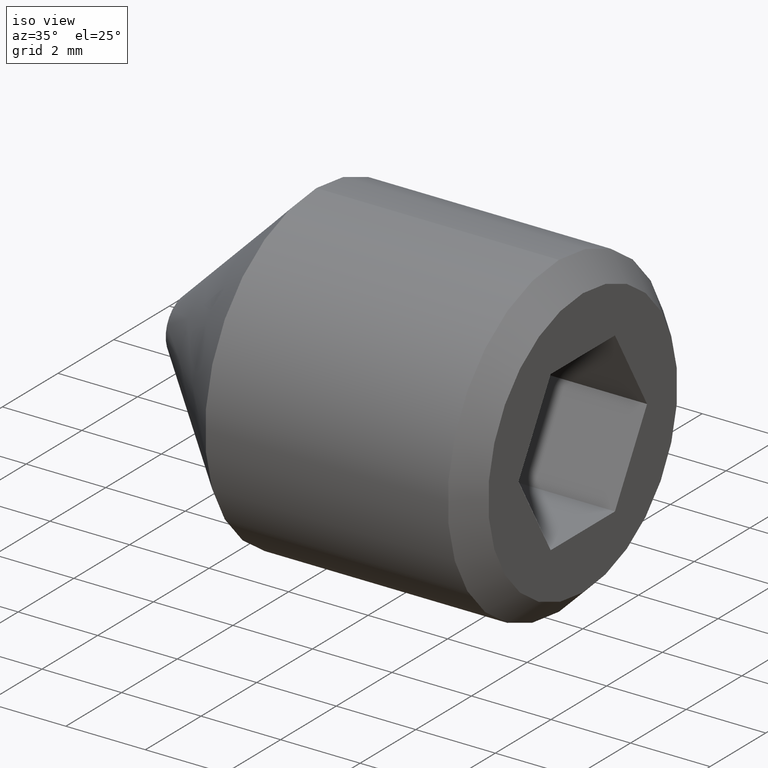
[diagram: clean part render]
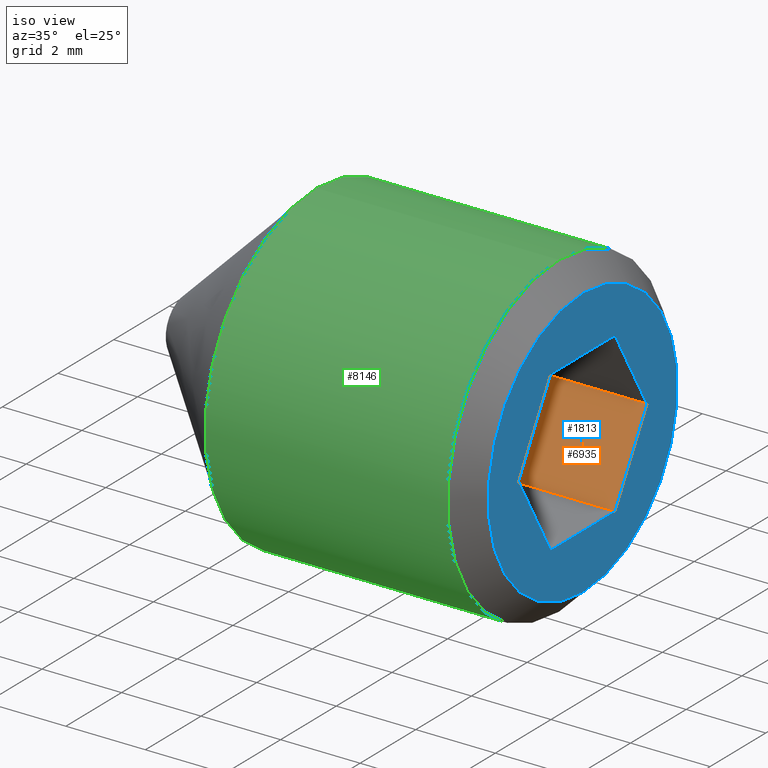
[diagram: same view with three faces highlighted in distinct colors, each labeled with its STEP entity id]
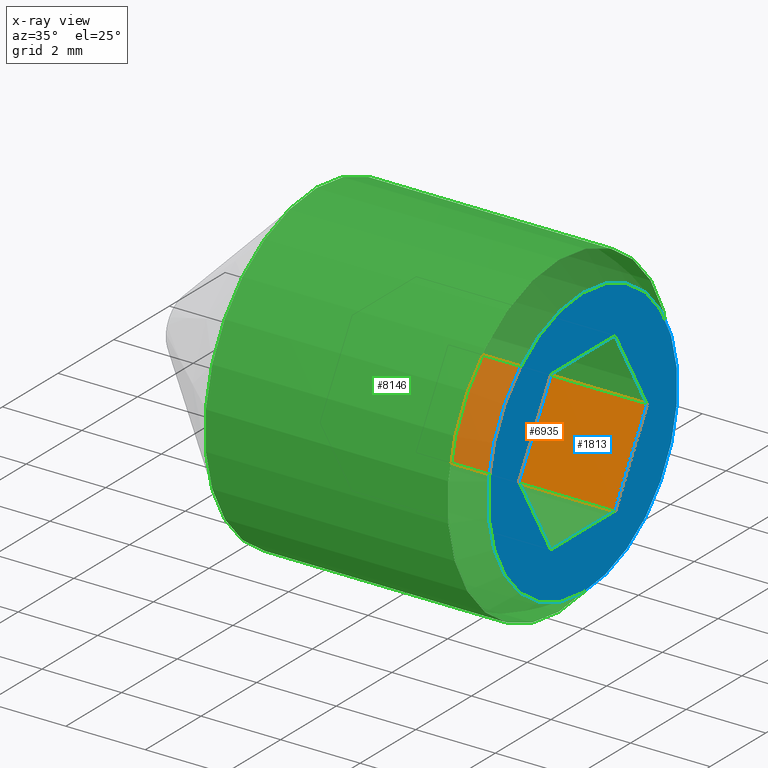
[diagram: x-ray of the same camera — body ghosted, the three highlighted faces saturated]
A machine part, iso view with three faces highlighted in distinct colors.
The next image is the same camera in x-ray (body ghosted, the three faces saturated) — at least one of them is partly hidden behind the body in this view.
Their STEP definitions:

[orange] entity #6935 — the highlighted planar face has unit normal (0, 0.866, -0.5).
#149 = ORIENTED_EDGE ( 'NONE', *, *, #3886, .T. ) ;
#911 = EDGE_CURVE ( 'NONE', #11181, #2549, #7802, .T. ) ;
#932 = DIRECTION ( 'NONE',  ( 3.061515884555943800E-017, 0.8660254037844387100, -0.5000000000000001100 ) ) ;
#982 = CARTESIAN_POINT ( 'NONE',  ( 10.00000000000000000, 1.154700538379252400, -1.999999999999999600 ) ) ;
#1622 = ORIENTED_EDGE ( 'NONE', *, *, #911, .T. ) ;
#1766 = VERTEX_POINT ( 'NONE', #6729 ) ;
#1983 = DIRECTION ( 'NONE',  ( 0.0000000000000000000, 0.4999999999999999400, 0.8660254037844386000 ) ) ;
#2109 = LINE ( 'NONE', #6678, #8781 ) ;
#2466 = DIRECTION ( 'NONE',  ( 1.000000000000000000, -0.0000000000000000000, 6.123031769111886300E-017 ) ) ;
#2549 = VERTEX_POINT ( 'NONE', #7913 ) ;
#2578 = VERTEX_POINT ( 'NONE', #10760 ) ;
#2788 = DIRECTION ( 'NONE',  ( 0.0000000000000000000, 0.4999999999999999400, 0.8660254037844386000 ) ) ;
#2816 = CARTESIAN_POINT ( 'NONE',  ( 5.000000000000000000, 1.154700538379252400, -2.000000000000000000 ) ) ;
#3135 = DIRECTION ( 'NONE',  ( 1.000000000000000000, -0.0000000000000000000, 6.123031769111886300E-017 ) ) ;
#3886 = EDGE_CURVE ( 'NONE', #2578, #11181, #2109, .T. ) ;
#5127 = VECTOR ( 'NONE', #2788, 1000.000000000000100 ) ;
#5704 = CARTESIAN_POINT ( 'NONE',  ( 5.000000000000000000, 1.154700538379252400, -2.000000000000000000 ) ) ;
#6013 = LINE ( 'NONE', #7891, #6563 ) ;
#6187 = AXIS2_PLACEMENT_3D ( 'NONE', #2816, #932, #7243 ) ;
#6563 = VECTOR ( 'NONE', #2466, 1000.000000000000000 ) ;
#6678 = CARTESIAN_POINT ( 'NONE',  ( 5.000000000000000000, 1.154700538379252400, -2.000000000000000000 ) ) ;
#6729 = CARTESIAN_POINT ( 'NONE',  ( 5.000000000000000000, 2.309401076758503400, -1.190619091596349400E-015 ) ) ;
#6741 = FACE_OUTER_BOUND ( 'NONE', #8150, .T. ) ;
#6935 = ADVANCED_FACE ( 'NONE', ( #6741 ), #10819, .F. ) ;
#7243 = DIRECTION ( 'NONE',  ( 0.0000000000000000000, 0.5000000000000000000, 0.8660254037844386000 ) ) ;
#7802 = LINE ( 'NONE', #982, #5127 ) ;
#7891 = CARTESIAN_POINT ( 'NONE',  ( 5.000000000000000000, 2.309401076758503400, -1.190619091596349400E-015 ) ) ;
#7913 = CARTESIAN_POINT ( 'NONE',  ( 10.00000000000000000, 2.309401076758503400, -8.844675031407550400E-016 ) ) ;
#8150 = EDGE_LOOP ( 'NONE', ( #1622, #9732, #9016, #149 ) ) ;
#8284 = VECTOR ( 'NONE', #1983, 1000.000000000000100 ) ;
#8434 = LINE ( 'NONE', #5704, #8284 ) ;
#8781 = VECTOR ( 'NONE', #3135, 1000.000000000000000 ) ;
#9016 = ORIENTED_EDGE ( 'NONE', *, *, #10495, .F. ) ;
#9308 = CARTESIAN_POINT ( 'NONE',  ( 10.00000000000000000, 1.154700538379252400, -1.999999999999999600 ) ) ;
#9732 = ORIENTED_EDGE ( 'NONE', *, *, #10150, .F. ) ;
#10150 = EDGE_CURVE ( 'NONE', #1766, #2549, #6013, .T. ) ;
#10495 = EDGE_CURVE ( 'NONE', #2578, #1766, #8434, .T. ) ;
#10760 = CARTESIAN_POINT ( 'NONE',  ( 5.000000000000000000, 1.154700538379252400, -2.000000000000000000 ) ) ;
#10819 = PLANE ( 'NONE',  #6187 ) ;
#11181 = VERTEX_POINT ( 'NONE', #9308 ) ;

[blue] entity #1813 — the highlighted planar face has unit normal (1, 0, 0).
#281 = FACE_BOUND ( 'NONE', #4044, .T. ) ;
#338 = EDGE_CURVE ( 'NONE', #7567, #4292, #6650, .T. ) ;
#365 = CARTESIAN_POINT ( 'NONE',  ( 10.00000000000000000, 1.154700538379252100, 2.000000000000000000 ) ) ;
#508 = DIRECTION ( 'NONE',  ( 1.000000000000000000, 0.0000000000000000000, 0.0000000000000000000 ) ) ;
#695 = CARTESIAN_POINT ( 'NONE',  ( 10.00000000000000000, 0.0000000000000000000, 0.0000000000000000000 ) ) ;
#911 = EDGE_CURVE ( 'NONE', #11181, #2549, #7802, .T. ) ;
#982 = CARTESIAN_POINT ( 'NONE',  ( 10.00000000000000000, 1.154700538379252400, -1.999999999999999600 ) ) ;
#1341 = DIRECTION ( 'NONE',  ( 0.0000000000000000000, 0.0000000000000000000, -1.000000000000000000 ) ) ;
#1424 = DIRECTION ( 'NONE',  ( 0.0000000000000000000, 1.000000000000000000, 0.0000000000000000000 ) ) ;
#1566 = DIRECTION ( 'NONE',  ( 1.000000000000000000, 0.0000000000000000000, 0.0000000000000000000 ) ) ;
#1813 = ADVANCED_FACE ( 'NONE', ( #281, #1982 ), #8691, .T. ) ;
#1935 = EDGE_CURVE ( 'NONE', #2549, #7567, #4832, .T. ) ;
#1982 = FACE_OUTER_BOUND ( 'NONE', #7431, .T. ) ;
#1998 = AXIS2_PLACEMENT_3D ( 'NONE', #4045, #508, #1341 ) ;
#2509 = LINE ( 'NONE', #3969, #10988 ) ;
#2549 = VERTEX_POINT ( 'NONE', #7913 ) ;
#2666 = LINE ( 'NONE', #10458, #3645 ) ;
#2788 = DIRECTION ( 'NONE',  ( 0.0000000000000000000, 0.4999999999999999400, 0.8660254037844386000 ) ) ;
#2961 = EDGE_CURVE ( 'NONE', #4292, #6827, #6095, .T. ) ;
#3419 = VECTOR ( 'NONE', #7470, 1000.000000000000000 ) ;
#3522 = ORIENTED_EDGE ( 'NONE', *, *, #338, .F. ) ;
#3645 = VECTOR ( 'NONE', #7593, 1000.000000000000000 ) ;
#3690 = CARTESIAN_POINT ( 'NONE',  ( 10.00000000000000000, 2.309401076758503400, -8.844675031407550400E-016 ) ) ;
#3836 = VECTOR ( 'NONE', #4528, 1000.000000000000000 ) ;
#3969 = CARTESIAN_POINT ( 'NONE',  ( 10.00000000000000000, -1.154700538379252400, -1.999999999999999600 ) ) ;
#4036 = ORIENTED_EDGE ( 'NONE', *, *, #4422, .T. ) ;
#4044 = EDGE_LOOP ( 'NONE', ( #8555, #3522, #7119, #6071, #10120, #7260 ) ) ;
#4045 = CARTESIAN_POINT ( 'NONE',  ( 10.00000000000000000, 0.0000000000000000000, 0.0000000000000000000 ) ) ;
#4149 = DIRECTION ( 'NONE',  ( 0.0000000000000000000, 0.0000000000000000000, -1.000000000000000000 ) ) ;
#4292 = VERTEX_POINT ( 'NONE', #9034 ) ;
#4422 = EDGE_CURVE ( 'NONE', #7130, #7130, #9329, .T. ) ;
#4528 = DIRECTION ( 'NONE',  ( 0.0000000000000000000, -0.4999999999999997200, 0.8660254037844388200 ) ) ;
#4832 = LINE ( 'NONE', #3690, #3836 ) ;
#5127 = VECTOR ( 'NONE', #2788, 1000.000000000000100 ) ;
#5233 = EDGE_CURVE ( 'NONE', #6827, #6535, #2666, .T. ) ;
#5352 = CARTESIAN_POINT ( 'NONE',  ( 10.00000000000000000, -1.154700538379252400, -1.999999999999999600 ) ) ;
#6071 = ORIENTED_EDGE ( 'NONE', *, *, #911, .F. ) ;
#6095 = LINE ( 'NONE', #7926, #9775 ) ;
#6352 = CARTESIAN_POINT ( 'NONE',  ( 10.00000000000000000, 0.0000000000000000000, -3.400000000000000800 ) ) ;
#6535 = VERTEX_POINT ( 'NONE', #5352 ) ;
#6650 = LINE ( 'NONE', #365, #3419 ) ;
#6827 = VERTEX_POINT ( 'NONE', #9159 ) ;
#7119 = ORIENTED_EDGE ( 'NONE', *, *, #1935, .F. ) ;
#7130 = VERTEX_POINT ( 'NONE', #6352 ) ;
#7260 = ORIENTED_EDGE ( 'NONE', *, *, #5233, .F. ) ;
#7324 = EDGE_CURVE ( 'NONE', #6535, #11181, #2509, .T. ) ;
#7431 = EDGE_LOOP ( 'NONE', ( #4036 ) ) ;
#7470 = DIRECTION ( 'NONE',  ( 0.0000000000000000000, -1.000000000000000000, 0.0000000000000000000 ) ) ;
#7567 = VERTEX_POINT ( 'NONE', #10940 ) ;
#7593 = DIRECTION ( 'NONE',  ( 0.0000000000000000000, 0.4999999999999995600, -0.8660254037844389300 ) ) ;
#7802 = LINE ( 'NONE', #982, #5127 ) ;
#7913 = CARTESIAN_POINT ( 'NONE',  ( 10.00000000000000000, 2.309401076758503400, -8.844675031407550400E-016 ) ) ;
#7926 = CARTESIAN_POINT ( 'NONE',  ( 10.00000000000000000, -1.154700538379251000, 2.000000000000000000 ) ) ;
#8555 = ORIENTED_EDGE ( 'NONE', *, *, #2961, .F. ) ;
#8691 = PLANE ( 'NONE',  #11003 ) ;
#9034 = CARTESIAN_POINT ( 'NONE',  ( 10.00000000000000000, -1.154700538379251000, 2.000000000000000000 ) ) ;
#9159 = CARTESIAN_POINT ( 'NONE',  ( 10.00000000000000000, -2.309401076758502900, 2.168404344971008900E-016 ) ) ;
#9308 = CARTESIAN_POINT ( 'NONE',  ( 10.00000000000000000, 1.154700538379252400, -1.999999999999999600 ) ) ;
#9329 = CIRCLE ( 'NONE', #1998, 3.400000000000000800 ) ;
#9775 = VECTOR ( 'NONE', #10808, 1000.000000000000100 ) ;
#10120 = ORIENTED_EDGE ( 'NONE', *, *, #7324, .F. ) ;
#10458 = CARTESIAN_POINT ( 'NONE',  ( 10.00000000000000000, -2.309401076758502500, 4.317532481129756600E-016 ) ) ;
#10808 = DIRECTION ( 'NONE',  ( 0.0000000000000000000, -0.4999999999999999400, -0.8660254037844386000 ) ) ;
#10940 = CARTESIAN_POINT ( 'NONE',  ( 10.00000000000000000, 1.154700538379252100, 2.000000000000000000 ) ) ;
#10988 = VECTOR ( 'NONE', #1424, 1000.000000000000000 ) ;
#11003 = AXIS2_PLACEMENT_3D ( 'NONE', #695, #1566, #4149 ) ;
#11181 = VERTEX_POINT ( 'NONE', #9308 ) ;

[green] entity #8146 — the highlighted cylindrical surface (bore or boss wall) has radius 4 mm, axis along (-1, -0, -0).
#192 = VERTEX_POINT ( 'NONE', #3710 ) ;
#333 = AXIS2_PLACEMENT_3D ( 'NONE', #530, #11319, #9309 ) ;
#530 = CARTESIAN_POINT ( 'NONE',  ( 3.299999999999963400, 0.0000000000000000000, 0.0000000000000000000 ) ) ;
#576 = EDGE_CURVE ( 'NONE', #9558, #9558, #6516, .T. ) ;
#1915 = DIRECTION ( 'NONE',  ( 0.0000000000000000000, 0.0000000000000000000, 1.000000000000000000 ) ) ;
#2871 = EDGE_LOOP ( 'NONE', ( #6267 ) ) ;
#2938 = DIRECTION ( 'NONE',  ( -1.000000000000000000, 0.0000000000000000000, 0.0000000000000000000 ) ) ;
#3710 = CARTESIAN_POINT ( 'NONE',  ( 3.299999999999963400, 0.0000000000000000000, 4.000000000000000000 ) ) ;
#4922 = FACE_OUTER_BOUND ( 'NONE', #7278, .T. ) ;
#5364 = AXIS2_PLACEMENT_3D ( 'NONE', #5593, #7354, #1915 ) ;
#5593 = CARTESIAN_POINT ( 'NONE',  ( 10.00000000000000000, 0.0000000000000000000, 0.0000000000000000000 ) ) ;
#5680 = DIRECTION ( 'NONE',  ( 0.0000000000000000000, 0.0000000000000000000, -1.000000000000000000 ) ) ;
#5786 = AXIS2_PLACEMENT_3D ( 'NONE', #7647, #2938, #5680 ) ;
#6044 = ORIENTED_EDGE ( 'NONE', *, *, #576, .T. ) ;
#6267 = ORIENTED_EDGE ( 'NONE', *, *, #7612, .F. ) ;
#6320 = FACE_OUTER_BOUND ( 'NONE', #2871, .T. ) ;
#6516 = CIRCLE ( 'NONE', #5786, 4.000000000000000000 ) ;
#7278 = EDGE_LOOP ( 'NONE', ( #6044 ) ) ;
#7354 = DIRECTION ( 'NONE',  ( -1.000000000000000000, -0.0000000000000000000, -0.0000000000000000000 ) ) ;
#7612 = EDGE_CURVE ( 'NONE', #192, #192, #9872, .T. ) ;
#7647 = CARTESIAN_POINT ( 'NONE',  ( 9.400000000000000400, 0.0000000000000000000, 0.0000000000000000000 ) ) ;
#8146 = ADVANCED_FACE ( 'NONE', ( #4922, #6320 ), #11410, .T. ) ;
#8296 = CARTESIAN_POINT ( 'NONE',  ( 9.400000000000000400, 0.0000000000000000000, -4.000000000000000000 ) ) ;
#9309 = DIRECTION ( 'NONE',  ( 0.0000000000000000000, 0.0000000000000000000, 1.000000000000000000 ) ) ;
#9558 = VERTEX_POINT ( 'NONE', #8296 ) ;
#9872 = CIRCLE ( 'NONE', #333, 4.000000000000000000 ) ;
#11319 = DIRECTION ( 'NONE',  ( -1.000000000000000000, -0.0000000000000000000, -0.0000000000000000000 ) ) ;
#11410 = CYLINDRICAL_SURFACE ( 'NONE', #5364, 4.000000000000000000 ) ;